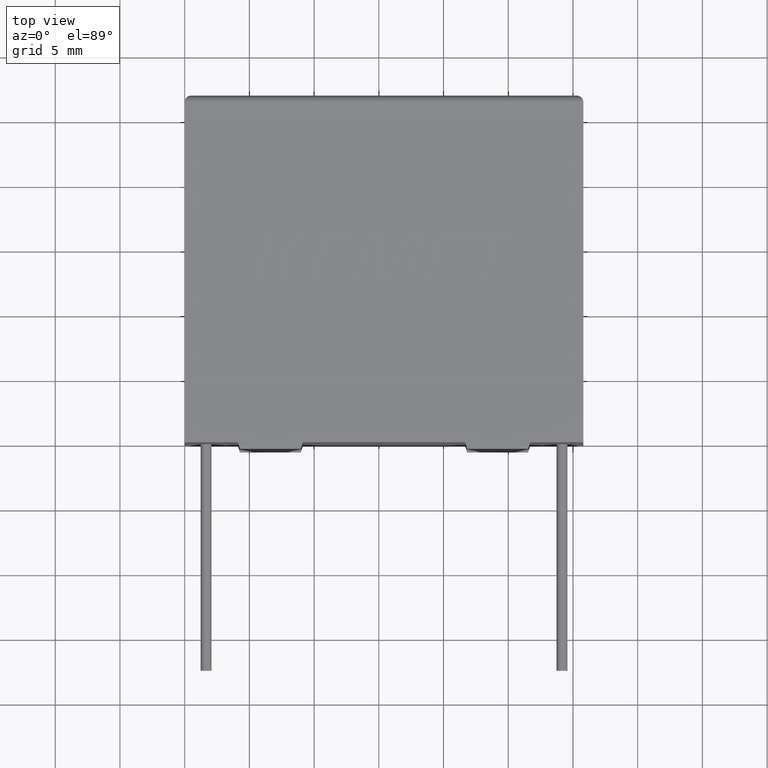
[diagram: clean part render]
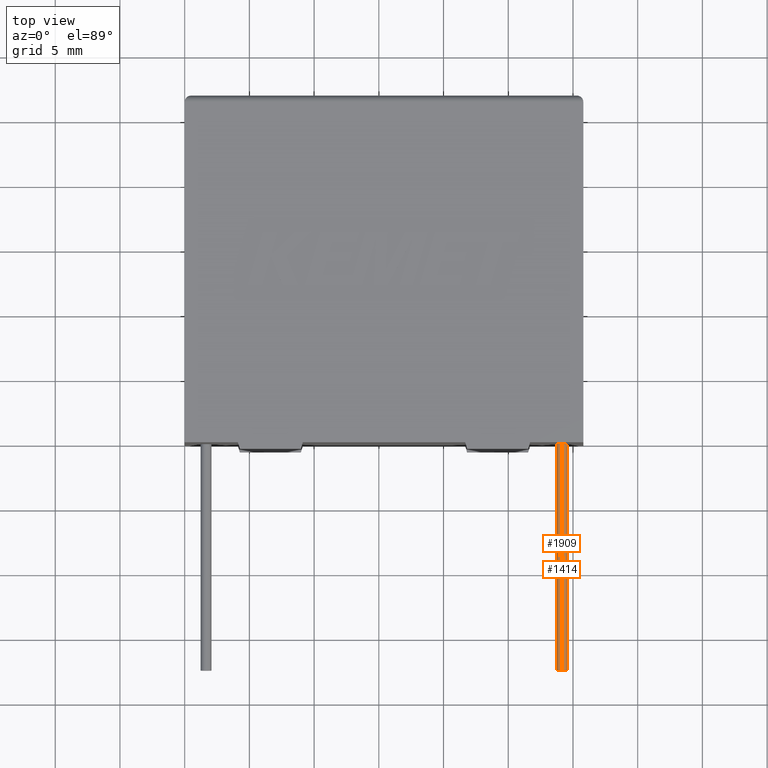
[diagram: same view with one multi-face feature highlighted, each face labeled with its STEP entity id]
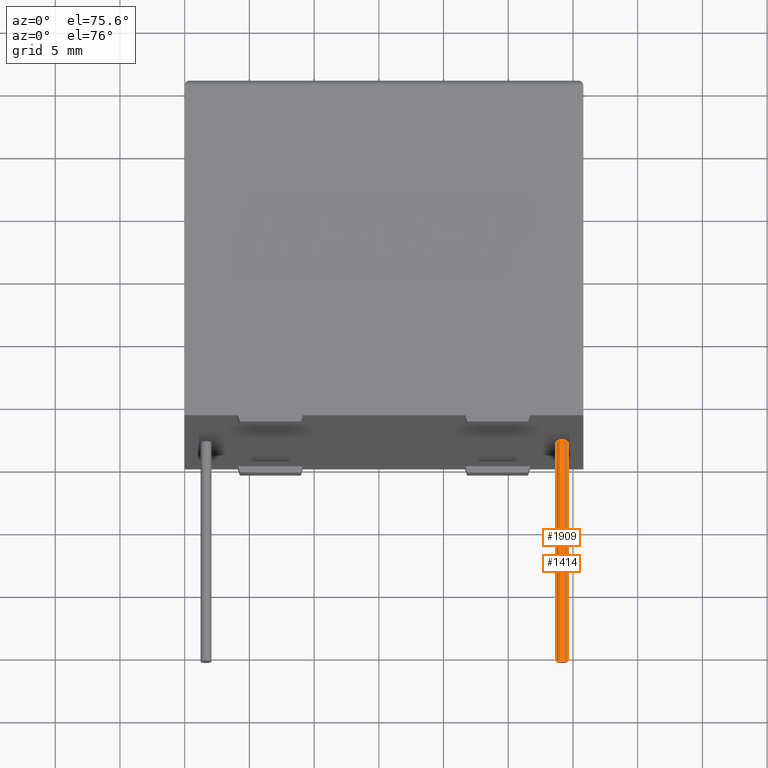
[diagram: same view with one multi-face feature highlighted, each face labeled with its STEP entity id]
A machine part, top view. The highlighted faces form ONE feature: a constant-radius fillet chain: 2 tangent blend faces with common blend radius 0.425 mm. The faces share edges in the B-rep.
A second angle (auxiliary view) of the same feature is appended — it is thin or edge-on in the first view.
Their STEP definitions:
[1] entity #1909 (Cylinder):
#3 = CIRCLE ( 'NONE', #2461, 0.4250000000000000400 ) ;
#97 = DIRECTION ( 'NONE',  ( -0.0000000000000000000, 1.000000000000000000, -0.0000000000000000000 ) ) ;
#140 = VECTOR ( 'NONE', #1593, 1000.000000000000000 ) ;
#190 = EDGE_CURVE ( 'NONE', #1436, #647, #901, .T. ) ;
#382 = AXIS2_PLACEMENT_3D ( 'NONE', #1108, #614, #1120 ) ;
#614 = DIRECTION ( 'NONE',  ( -0.0000000000000000000, 1.000000000000000000, -0.0000000000000000000 ) ) ;
#647 = VERTEX_POINT ( 'NONE', #2913 ) ;
#659 = DIRECTION ( 'NONE',  ( 0.0000000000000000000, 0.0000000000000000000, -1.000000000000000000 ) ) ;
#804 = ORIENTED_EDGE ( 'NONE', *, *, #190, .F. ) ;
#901 = LINE ( 'NONE', #2015, #988 ) ;
#923 = LINE ( 'NONE', #1601, #140 ) ;
#988 = VECTOR ( 'NONE', #2082, 1000.000000000000000 ) ;
#1027 = CARTESIAN_POINT ( 'NONE',  ( 29.14999999999999900, -17.50000000000000000, 7.975000000000001400 ) ) ;
#1034 = CIRCLE ( 'NONE', #382, 0.4250000000000000400 ) ;
#1065 = CARTESIAN_POINT ( 'NONE',  ( 29.14999999999999900, -17.50000000000000000, 8.825000000000001100 ) ) ;
#1108 = CARTESIAN_POINT ( 'NONE',  ( 29.14999999999999900, -17.50000000000000000, 8.400000000000000400 ) ) ;
#1120 = DIRECTION ( 'NONE',  ( 0.0000000000000000000, 0.0000000000000000000, -1.000000000000000000 ) ) ;
#1277 = DIRECTION ( 'NONE',  ( 0.0000000000000000000, 0.0000000000000000000, 1.000000000000000000 ) ) ;
#1436 = VERTEX_POINT ( 'NONE', #1027 ) ;
#1442 = VERTEX_POINT ( 'NONE', #1065 ) ;
#1491 = EDGE_CURVE ( 'NONE', #1442, #2650, #923, .T. ) ;
#1585 = ORIENTED_EDGE ( 'NONE', *, *, #1491, .T. ) ;
#1593 = DIRECTION ( 'NONE',  ( -0.0000000000000000000, 1.000000000000000000, -0.0000000000000000000 ) ) ;
#1601 = CARTESIAN_POINT ( 'NONE',  ( 29.14999999999999900, -17.50000000000000000, 8.825000000000001100 ) ) ;
#1720 = ORIENTED_EDGE ( 'NONE', *, *, #3112, .T. ) ;
#1782 = AXIS2_PLACEMENT_3D ( 'NONE', #2050, #97, #1277 ) ;
#1838 = CYLINDRICAL_SURFACE ( 'NONE', #1782, 0.4250000000000000400 ) ;
#1909 = ADVANCED_FACE ( 'NONE', ( #2924 ), #1838, .T. ) ;
#2015 = CARTESIAN_POINT ( 'NONE',  ( 29.14999999999999900, -17.50000000000000000, 7.975000000000001400 ) ) ;
#2050 = CARTESIAN_POINT ( 'NONE',  ( 29.14999999999999900, -17.50000000000000000, 8.400000000000000400 ) ) ;
#2082 = DIRECTION ( 'NONE',  ( -0.0000000000000000000, 1.000000000000000000, -0.0000000000000000000 ) ) ;
#2212 = CARTESIAN_POINT ( 'NONE',  ( 29.14999999999999900, 0.0000000000000000000, 8.400000000000000400 ) ) ;
#2387 = EDGE_LOOP ( 'NONE', ( #804, #1720, #1585, #3083 ) ) ;
#2433 = DIRECTION ( 'NONE',  ( -0.0000000000000000000, 1.000000000000000000, -0.0000000000000000000 ) ) ;
#2461 = AXIS2_PLACEMENT_3D ( 'NONE', #2212, #2433, #659 ) ;
#2590 = CARTESIAN_POINT ( 'NONE',  ( 29.14999999999999900, 0.0000000000000000000, 8.825000000000001100 ) ) ;
#2650 = VERTEX_POINT ( 'NONE', #2590 ) ;
#2913 = CARTESIAN_POINT ( 'NONE',  ( 29.14999999999999900, 0.0000000000000000000, 7.975000000000001400 ) ) ;
#2924 = FACE_OUTER_BOUND ( 'NONE', #2387, .T. ) ;
#2993 = EDGE_CURVE ( 'NONE', #647, #2650, #3, .T. ) ;
#3083 = ORIENTED_EDGE ( 'NONE', *, *, #2993, .F. ) ;
#3112 = EDGE_CURVE ( 'NONE', #1436, #1442, #1034, .T. ) ;
[2] entity #1414 (Cylinder):
#27 = AXIS2_PLACEMENT_3D ( 'NONE', #544, #811, #818 ) ;
#73 = EDGE_CURVE ( 'NONE', #1442, #1436, #470, .T. ) ;
#140 = VECTOR ( 'NONE', #1593, 1000.000000000000000 ) ;
#190 = EDGE_CURVE ( 'NONE', #1436, #647, #901, .T. ) ;
#225 = CYLINDRICAL_SURFACE ( 'NONE', #642, 0.4250000000000000400 ) ;
#281 = CARTESIAN_POINT ( 'NONE',  ( 29.14999999999999900, -17.50000000000000000, 8.400000000000000400 ) ) ;
#470 = CIRCLE ( 'NONE', #2038, 0.4250000000000000400 ) ;
#544 = CARTESIAN_POINT ( 'NONE',  ( 29.14999999999999900, 0.0000000000000000000, 8.400000000000000400 ) ) ;
#619 = ORIENTED_EDGE ( 'NONE', *, *, #73, .T. ) ;
#642 = AXIS2_PLACEMENT_3D ( 'NONE', #281, #2536, #2555 ) ;
#647 = VERTEX_POINT ( 'NONE', #2913 ) ;
#682 = ORIENTED_EDGE ( 'NONE', *, *, #1491, .F. ) ;
#735 = DIRECTION ( 'NONE',  ( -0.0000000000000000000, 1.000000000000000000, -0.0000000000000000000 ) ) ;
#811 = DIRECTION ( 'NONE',  ( -0.0000000000000000000, 1.000000000000000000, -0.0000000000000000000 ) ) ;
#818 = DIRECTION ( 'NONE',  ( 0.0000000000000000000, 0.0000000000000000000, -1.000000000000000000 ) ) ;
#901 = LINE ( 'NONE', #2015, #988 ) ;
#923 = LINE ( 'NONE', #1601, #140 ) ;
#988 = VECTOR ( 'NONE', #2082, 1000.000000000000000 ) ;
#1027 = CARTESIAN_POINT ( 'NONE',  ( 29.14999999999999900, -17.50000000000000000, 7.975000000000001400 ) ) ;
#1065 = CARTESIAN_POINT ( 'NONE',  ( 29.14999999999999900, -17.50000000000000000, 8.825000000000001100 ) ) ;
#1119 = EDGE_LOOP ( 'NONE', ( #619, #1124, #1191, #682 ) ) ;
#1124 = ORIENTED_EDGE ( 'NONE', *, *, #190, .T. ) ;
#1191 = ORIENTED_EDGE ( 'NONE', *, *, #2054, .F. ) ;
#1232 = DIRECTION ( 'NONE',  ( 0.0000000000000000000, 0.0000000000000000000, -1.000000000000000000 ) ) ;
#1414 = ADVANCED_FACE ( 'NONE', ( #3165 ), #225, .T. ) ;
#1436 = VERTEX_POINT ( 'NONE', #1027 ) ;
#1442 = VERTEX_POINT ( 'NONE', #1065 ) ;
#1491 = EDGE_CURVE ( 'NONE', #1442, #2650, #923, .T. ) ;
#1593 = DIRECTION ( 'NONE',  ( -0.0000000000000000000, 1.000000000000000000, -0.0000000000000000000 ) ) ;
#1601 = CARTESIAN_POINT ( 'NONE',  ( 29.14999999999999900, -17.50000000000000000, 8.825000000000001100 ) ) ;
#2015 = CARTESIAN_POINT ( 'NONE',  ( 29.14999999999999900, -17.50000000000000000, 7.975000000000001400 ) ) ;
#2038 = AXIS2_PLACEMENT_3D ( 'NONE', #2699, #735, #1232 ) ;
#2054 = EDGE_CURVE ( 'NONE', #2650, #647, #2838, .T. ) ;
#2082 = DIRECTION ( 'NONE',  ( -0.0000000000000000000, 1.000000000000000000, -0.0000000000000000000 ) ) ;
#2536 = DIRECTION ( 'NONE',  ( -0.0000000000000000000, 1.000000000000000000, -0.0000000000000000000 ) ) ;
#2555 = DIRECTION ( 'NONE',  ( 0.0000000000000000000, 0.0000000000000000000, 1.000000000000000000 ) ) ;
#2590 = CARTESIAN_POINT ( 'NONE',  ( 29.14999999999999900, 0.0000000000000000000, 8.825000000000001100 ) ) ;
#2650 = VERTEX_POINT ( 'NONE', #2590 ) ;
#2699 = CARTESIAN_POINT ( 'NONE',  ( 29.14999999999999900, -17.50000000000000000, 8.400000000000000400 ) ) ;
#2838 = CIRCLE ( 'NONE', #27, 0.4250000000000000400 ) ;
#2913 = CARTESIAN_POINT ( 'NONE',  ( 29.14999999999999900, 0.0000000000000000000, 7.975000000000001400 ) ) ;
#3165 = FACE_OUTER_BOUND ( 'NONE', #1119, .T. ) ;